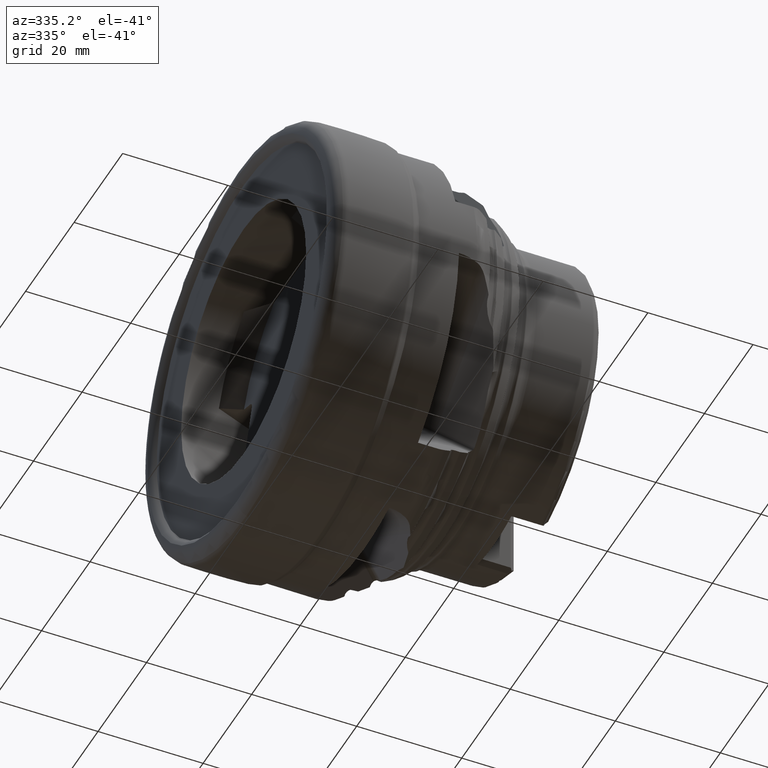
[diagram: clean part render]
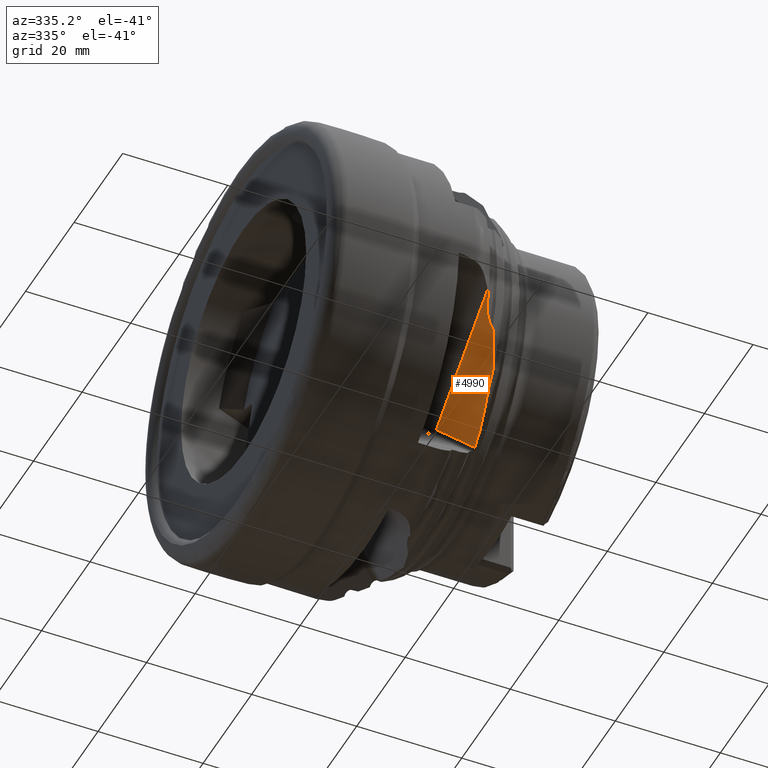
[diagram: same view with one face highlighted and labeled with its STEP entity id]
A machine part, auxiliary view. The second image highlights one B-rep face of the part: STEP entity #4990.
In plain terms, the highlighted planar face has unit normal (-0.7071, -0.4156, -0.5721).
Its self-contained STEP definition (entity closure, byte-faithful):
#182 = EDGE_CURVE ( 'NONE', #6932, #6867, #670, .T. ) ;
#185 = EDGE_CURVE ( 'NONE', #7005, #6932, #679, .T. ) ;
#320 = EDGE_CURVE ( 'NONE', #6902, #6884, #1455, .T. ) ;
#670 = LINE ( 'NONE', #4732, #674 ) ;
#674 = VECTOR ( 'NONE', #4260, 999.9999999999998900 ) ;
#677 = VECTOR ( 'NONE', #4562, 1000.000000000000000 ) ;
#679 = LINE ( 'NONE', #4429, #677 ) ;
#1016 = FACE_OUTER_BOUND ( 'NONE', #6381, .T. ) ;
#1455 = B_SPLINE_CURVE_WITH_KNOTS ( 'NONE', 3,
 ( #1478, #1575, #1497, #1525, #1574, #1751, #1750, #1749, #1554, #1549, #1542, #1520 ),
 .UNSPECIFIED., .F., .F.,
 ( 4, 2, 2, 2, 2, 4 ),
 ( 0.001567386501334672400, 0.002772957414122477100, 0.003978528326910281200, 0.005184099239698086200, 0.005786884696091987000, 0.006389670152485886000 ),
 .UNSPECIFIED. ) ;
#1478 = CARTESIAN_POINT ( 'NONE',  ( 31.23032993495438700, -33.91982507068104300, -11.20475218658833500 ) ) ;
#1497 = CARTESIAN_POINT ( 'NONE',  ( 30.84946789168626000, -34.17050588428376300, -10.55185053902211400 ) ) ;
#1520 = CARTESIAN_POINT ( 'NONE',  ( 29.73043769693221000, -36.43612503711614900, -7.522584482635113400 ) ) ;
#1525 = CARTESIAN_POINT ( 'NONE',  ( 30.51789733668681800, -34.49909526680421800, -9.903272633053354900 ) ) ;
#1542 = CARTESIAN_POINT ( 'NONE',  ( 29.73203780649397400, -36.27529415589483400, -7.641412801848777500 ) ) ;
#1549 = CARTESIAN_POINT ( 'NONE',  ( 29.75093304080955600, -36.12335975976363800, -7.775155396169746600 ) ) ;
#1554 = CARTESIAN_POINT ( 'NONE',  ( 29.80838065919682100, -35.83856415355921100, -8.053080677338451600 ) ) ;
#1574 = CARTESIAN_POINT ( 'NONE',  ( 30.36653050733476500, -34.68649519709269700, -9.580018923335780200 ) ) ;
#1575 = CARTESIAN_POINT ( 'NONE',  ( 31.02902394148156200, -34.02797684060537600, -10.87734743404872300 ) ) ;
#1602 = B_SPLINE_CURVE_WITH_KNOTS ( 'NONE', 3,
 ( #2720, #2724, #2725, #2726, #2727, #2728, #2729, #2730, #2731, #2732, #2733, #2734, #2735, #2736 ),
 .UNSPECIFIED., .F., .F.,
 ( 4, 2, 2, 2, 2, 2, 4 ),
 ( 0.004969955442742871700, 0.008391299156111132300, 0.01181264286947939500, 0.01523398658284765500, 0.01694465843953178700, 0.01779999436787385600, 0.01865533029621592100 ),
 .UNSPECIFIED. ) ;
#1749 = CARTESIAN_POINT ( 'NONE',  ( 29.84742917185766900, -35.70398119331253600, -8.199127537571570200 ) ) ;
#1750 = CARTESIAN_POINT ( 'NONE',  ( 29.98396131896632600, -35.32338374872241400, -8.644410782056757700 ) ) ;
#1751 = CARTESIAN_POINT ( 'NONE',  ( 30.10028986259883500, -35.09837991659113500, -8.951675622717647900 ) ) ;
#1878 = AXIS2_PLACEMENT_3D ( 'NONE', #4104, #4088, #4077 ) ;
#2720 = CARTESIAN_POINT ( 'NONE',  ( 35.09973634728064700, -19.24066595392476800, -26.65263491847802500 ) ) ;
#2724 = CARTESIAN_POINT ( 'NONE',  ( 35.10273794527161300, -20.16256365977642400, -25.98654720786420600 ) ) ;
#2725 = CARTESIAN_POINT ( 'NONE',  ( 35.05249265870490700, -21.05383866511410300, -25.27689142259276500 ) ) ;
#2726 = CARTESIAN_POINT ( 'NONE',  ( 34.86954497585372800, -22.77989281806563300, -23.79670390250308600 ) ) ;
#2727 = CARTESIAN_POINT ( 'NONE',  ( 34.73847014144330100, -23.61279045711893300, -23.02955094078480900 ) ) ;
#2728 = CARTESIAN_POINT ( 'NONE',  ( 34.44401670231762600, -25.25400820944778600, -21.47317197903261700 ) ) ;
#2729 = CARTESIAN_POINT ( 'NONE',  ( 34.27949990127574200, -26.06089513886343000, -20.68358035999190400 ) ) ;
#2730 = CARTESIAN_POINT ( 'NONE',  ( 34.05711708430094100, -27.29074040094464900, -19.51516519541527800 ) ) ;
#2731 = CARTESIAN_POINT ( 'NONE',  ( 33.98704748638341800, -27.70417057356968700, -19.12817980646046900 ) ) ;
#2732 = CARTESIAN_POINT ( 'NONE',  ( 33.90245291499989800, -28.33955698508705700, -18.56197991601888800 ) ) ;
#2733 = CARTESIAN_POINT ( 'NONE',  ( 33.87772439294622000, -28.55405324806064000, -18.37557312462893200 ) ) ;
#2734 = CARTESIAN_POINT ( 'NONE',  ( 33.84039600889661900, -28.99165855963647000, -18.01149383511252800 ) ) ;
#2735 = CARTESIAN_POINT ( 'NONE',  ( 33.82759362645848700, -29.21418862829747800, -17.83399166150288600 ) ) ;
#2736 = CARTESIAN_POINT ( 'NONE',  ( 33.82627103026551700, -29.44401847399794300, -17.66537568559528300 ) ) ;
#3092 = CARTESIAN_POINT ( 'NONE',  ( 31.72649995546285200, -33.75957695441947200, -11.93447913183103800 ) ) ;
#3110 = CARTESIAN_POINT ( 'NONE',  ( 31.54413318774879800, -33.77557637229878700, -11.69743715258690900 ) ) ;
#3111 = CARTESIAN_POINT ( 'NONE',  ( 31.38039342567605800, -33.83920336716101900, -11.44881595834876400 ) ) ;
#3112 = CARTESIAN_POINT ( 'NONE',  ( 31.23032993495438700, -33.91982507068104300, -11.20475218658833500 ) ) ;
#3140 = CARTESIAN_POINT ( 'NONE',  ( 29.60252591518788600, -36.76213674241210300, -7.127615456750964600 ) ) ;
#3161 = CARTESIAN_POINT ( 'NONE',  ( 29.52376733408265600, -36.84948759352954500, -6.966800388499168900 ) ) ;
#3162 = CARTESIAN_POINT ( 'NONE',  ( 29.44424541706434400, -36.93623886602051000, -6.805477404540170000 ) ) ;
#3163 = CARTESIAN_POINT ( 'NONE',  ( 29.36396103067889000, -37.02238961455966400, -6.643648262802718900 ) ) ;
#3172 = CARTESIAN_POINT ( 'NONE',  ( 29.73043769693221000, -36.43612503711614900, -7.522584482635113400 ) ) ;
#3180 = CARTESIAN_POINT ( 'NONE',  ( 29.72971804264647500, -36.50845922954376000, -7.469141073990071400 ) ) ;
#3181 = CARTESIAN_POINT ( 'NONE',  ( 29.71308904243270300, -36.56957496907387700, -7.404183315428868500 ) ) ;
#3182 = CARTESIAN_POINT ( 'NONE',  ( 29.66720444332074500, -36.67755661023289800, -7.269013577260317900 ) ) ;
#3183 = CARTESIAN_POINT ( 'NONE',  ( 29.63759330155453500, -36.72324363384189600, -7.199218627515975300 ) ) ;
#3184 = CARTESIAN_POINT ( 'NONE',  ( 29.60252591518788600, -36.76213674241210300, -7.127615456750964600 ) ) ;
#3198 = CARTESIAN_POINT ( 'NONE',  ( 31.99780062542405200, -33.54093911207485200, -12.42867489293900900 ) ) ;
#3201 = CARTESIAN_POINT ( 'NONE',  ( 33.82627103026551700, -29.44401847399794300, -17.66537568559528300 ) ) ;
#3202 = CARTESIAN_POINT ( 'NONE',  ( 31.96485593370321300, -33.59524997700713600, -12.34849386136821400 ) ) ;
#3203 = CARTESIAN_POINT ( 'NONE',  ( 31.92719110203068300, -33.64323441831286500, -12.26707483176868900 ) ) ;
#3204 = CARTESIAN_POINT ( 'NONE',  ( 31.83877104528524900, -33.72165819104702000, -12.10080342495896800 ) ) ;
#3205 = CARTESIAN_POINT ( 'NONE',  ( 31.78946981877183500, -33.75405247663488200, -12.01632793147034300 ) ) ;
#3206 = CARTESIAN_POINT ( 'NONE',  ( 31.72649995546285200, -33.75957695441947200, -11.93447913183103800 ) ) ;
#3211 = CARTESIAN_POINT ( 'NONE',  ( 33.69835924852056800, -30.09013044657788800, -17.03784020230265700 ) ) ;
#3215 = CARTESIAN_POINT ( 'NONE',  ( 33.22289337631086400, -31.30543950957551000, -15.56715834433216400 ) ) ;
#3216 = CARTESIAN_POINT ( 'NONE',  ( 32.65580190175399600, -32.45619323717529900, -14.03012320995734900 ) ) ;
#3217 = CARTESIAN_POINT ( 'NONE',  ( 31.99780062542405200, -33.54093911207485200, -12.42867489293900900 ) ) ;
#3225 = CARTESIAN_POINT ( 'NONE',  ( 33.82555925279110200, -29.56770528608239000, -17.57463215111928900 ) ) ;
#3226 = CARTESIAN_POINT ( 'NONE',  ( 33.80979445750512700, -29.67986938051008700, -17.47365380777754900 ) ) ;
#3227 = CARTESIAN_POINT ( 'NONE',  ( 33.76519645953383300, -29.89419402253043500, -17.26281168339731700 ) ) ;
#3228 = CARTESIAN_POINT ( 'NONE',  ( 33.73521545132148700, -29.99592457417056900, -17.15184154704887100 ) ) ;
#3229 = CARTESIAN_POINT ( 'NONE',  ( 33.69835924852056800, -30.09013044657788800, -17.03784020230265700 ) ) ;
#3582 = B_SPLINE_CURVE_WITH_KNOTS ( 'NONE', 3,
 ( #3092, #3110, #3111, #3112 ),
 .UNSPECIFIED., .F., .F.,
 ( 4, 4 ),
 ( 0.0006686940363740624600, 0.001567386501334672400 ),
 .UNSPECIFIED. ) ;
#3592 = B_SPLINE_CURVE_WITH_KNOTS ( 'NONE', 3,
 ( #3172, #3180, #3181, #3182, #3183, #3184 ),
 .UNSPECIFIED., .F., .F.,
 ( 4, 2, 4 ),
 ( 0.0004056233082977447800, 0.0006753954524094733500, 0.0009451675965212019100 ),
 .UNSPECIFIED. ) ;
#3596 = B_SPLINE_CURVE_WITH_KNOTS ( 'NONE', 3,
 ( #3198, #3202, #3203, #3204, #3205, #3206 ),
 .UNSPECIFIED., .F., .F.,
 ( 4, 2, 4 ),
 ( 6.175144802177971900E-007, 0.0003056811056388322900, 0.0006107446967974468700 ),
 .UNSPECIFIED. ) ;
#3598 = B_SPLINE_CURVE_WITH_KNOTS ( 'NONE', 3,
 ( #3201, #3225, #3226, #3227, #3228, #3229 ),
 .UNSPECIFIED., .F., .F.,
 ( 4, 2, 4 ),
 ( 0.0006008140578982308800, 0.001063463689483615300, 0.001526113321068999700 ),
 .UNSPECIFIED. ) ;
#3824 = CARTESIAN_POINT ( 'NONE',  ( 35.09973634728064700, -19.24066595392476800, -26.65263491847802500 ) ) ;
#3825 = CARTESIAN_POINT ( 'NONE',  ( 33.82627103026551700, -29.44401847399794300, -17.66537568559528300 ) ) ;
#3841 = CARTESIAN_POINT ( 'NONE',  ( 29.73043769693221000, -36.43612503711614900, -7.522584482635113400 ) ) ;
#3859 = CARTESIAN_POINT ( 'NONE',  ( 31.23032993495438700, -33.91982507068104300, -11.20475218658833500 ) ) ;
#3889 = CARTESIAN_POINT ( 'NONE',  ( 29.36396103067889000, -15.86926181236312400, -22.01229521143089900 ) ) ;
#3952 = CARTESIAN_POINT ( 'NONE',  ( 33.69835924852056800, -30.09013044657788800, -17.03784020230265700 ) ) ;
#3954 = CARTESIAN_POINT ( 'NONE',  ( 31.99780062542405200, -33.54093911207485200, -12.42867489293900900 ) ) ;
#3956 = CARTESIAN_POINT ( 'NONE',  ( 31.72649995546285200, -33.75957695441947200, -11.93447913183103800 ) ) ;
#3958 = CARTESIAN_POINT ( 'NONE',  ( 29.60252591518788600, -36.76213674241210300, -7.127615456750964600 ) ) ;
#3959 = CARTESIAN_POINT ( 'NONE',  ( 29.36396103067889000, -37.02238961455966400, -6.643648262802718900 ) ) ;
#4068 = PLANE ( 'NONE',  #1878 ) ;
#4077 = DIRECTION ( 'NONE',  ( -0.6289601696450997100, 0.0000000000000000000, 0.7774375248211314900 ) ) ;
#4088 = DIRECTION ( 'NONE',  ( -0.7071067811865436900, -0.4156269377774525200, -0.5720614028176896900 ) ) ;
#4104 = CARTESIAN_POINT ( 'NONE',  ( 29.36396103067889000, -60.03816357195540800, 10.07829033220333400 ) ) ;
#4260 = DIRECTION ( 'NONE',  ( 0.7071067811865513500, -0.4156269377774479700, -0.5720614028176835800 ) ) ;
#4429 = CARTESIAN_POINT ( 'NONE',  ( 29.36396103067889000, -60.03816357195540800, 10.07829033220333400 ) ) ;
#4562 = DIRECTION ( 'NONE',  ( 0.0000000000000000000, 0.8090169943749507800, -0.5877852522924685900 ) ) ;
#4732 = CARTESIAN_POINT ( 'NONE',  ( 29.36396103067889000, -15.86926181236312400, -22.01229521143089900 ) ) ;
#4829 =( BOUNDED_CURVE ( )  B_SPLINE_CURVE ( 3, ( #3140, #3161, #3162, #3163 ),
 .UNSPECIFIED., .F., .F. ) 
 B_SPLINE_CURVE_WITH_KNOTS ( ( 4, 4 ),
 ( 3.469690055763374300, 3.476292166023215600 ),
 .UNSPECIFIED. ) 
 CURVE ( )  GEOMETRIC_REPRESENTATION_ITEM ( )  RATIONAL_B_SPLINE_CURVE ( ( 1.000000000000000000, 0.9999963676816415700, 0.9999963676816415700, 1.000000000000000000 ) ) 
 REPRESENTATION_ITEM ( '' )  );
#4830 =( BOUNDED_CURVE ( )  B_SPLINE_CURVE ( 3, ( #3211, #3215, #3216, #3217 ),
 .UNSPECIFIED., .F., .T. ) 
 B_SPLINE_CURVE_WITH_KNOTS ( ( 4, 4 ),
 ( 3.323297547860763100, 3.394357073035570800 ),
 .UNSPECIFIED. ) 
 CURVE ( )  GEOMETRIC_REPRESENTATION_ITEM ( )  RATIONAL_B_SPLINE_CURVE ( ( 1.000000000000000000, 0.9995792562539356200, 0.9995792562539356200, 1.000000000000000000 ) ) 
 REPRESENTATION_ITEM ( '' )  );
#4990 = ADVANCED_FACE ( 'NONE', ( #1016 ), #4068, .T. ) ;
#5160 = EDGE_CURVE ( 'NONE', #6867, #6868, #1602, .T. ) ;
#5257 = EDGE_CURVE ( 'NONE', #7002, #6902, #3582, .T. ) ;
#5269 = EDGE_CURVE ( 'NONE', #7004, #7005, #4829, .T. ) ;
#5274 = EDGE_CURVE ( 'NONE', #6884, #7004, #3592, .T. ) ;
#5279 = EDGE_CURVE ( 'NONE', #7000, #7002, #3596, .T. ) ;
#5282 = EDGE_CURVE ( 'NONE', #6998, #7000, #4830, .T. ) ;
#5285 = EDGE_CURVE ( 'NONE', #6868, #6998, #3598, .T. ) ;
#6381 = EDGE_LOOP ( 'NONE', ( #6572, #6573, #6574, #6575, #6576, #6577, #6578, #6579, #6580, #6581 ) ) ;
#6572 = ORIENTED_EDGE ( 'NONE', *, *, #185, .T. ) ;
#6573 = ORIENTED_EDGE ( 'NONE', *, *, #182, .T. ) ;
#6574 = ORIENTED_EDGE ( 'NONE', *, *, #5160, .T. ) ;
#6575 = ORIENTED_EDGE ( 'NONE', *, *, #5285, .T. ) ;
#6576 = ORIENTED_EDGE ( 'NONE', *, *, #5282, .T. ) ;
#6577 = ORIENTED_EDGE ( 'NONE', *, *, #5279, .T. ) ;
#6578 = ORIENTED_EDGE ( 'NONE', *, *, #5257, .T. ) ;
#6579 = ORIENTED_EDGE ( 'NONE', *, *, #320, .T. ) ;
#6580 = ORIENTED_EDGE ( 'NONE', *, *, #5274, .T. ) ;
#6581 = ORIENTED_EDGE ( 'NONE', *, *, #5269, .T. ) ;
#6867 = VERTEX_POINT ( 'NONE', #3824 ) ;
#6868 = VERTEX_POINT ( 'NONE', #3825 ) ;
#6884 = VERTEX_POINT ( 'NONE', #3841 ) ;
#6902 = VERTEX_POINT ( 'NONE', #3859 ) ;
#6932 = VERTEX_POINT ( 'NONE', #3889 ) ;
#6998 = VERTEX_POINT ( 'NONE', #3952 ) ;
#7000 = VERTEX_POINT ( 'NONE', #3954 ) ;
#7002 = VERTEX_POINT ( 'NONE', #3956 ) ;
#7004 = VERTEX_POINT ( 'NONE', #3958 ) ;
#7005 = VERTEX_POINT ( 'NONE', #3959 ) ;